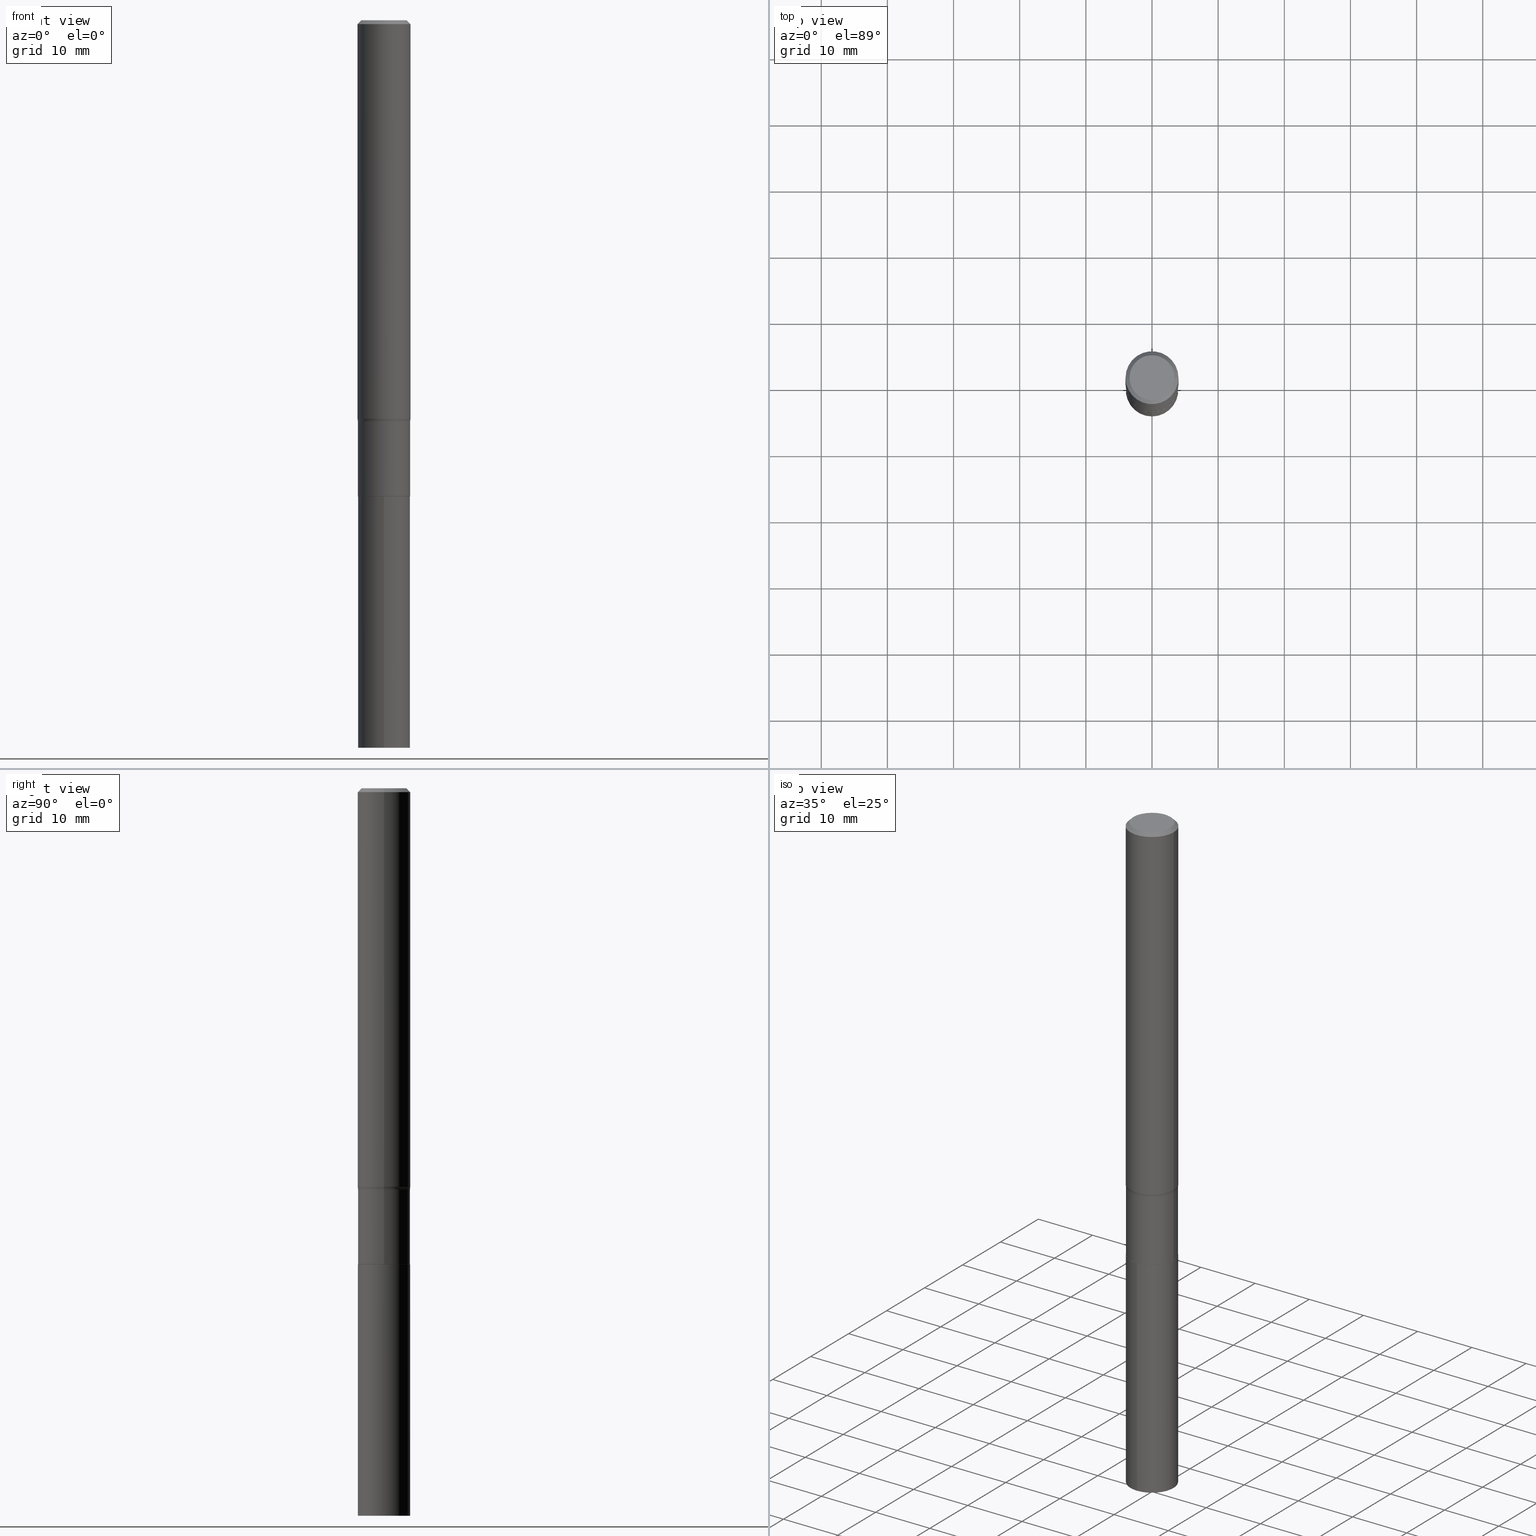
[diagram: canonical four-view strip — front | top / right | iso, engineering-drawing reading convention]
A machine part, canonical four-view strip (front | top / right | iso — engineering-drawing reading convention). The complete STEP part file that produces these views, byte-faithful:
ISO-10303-21;
HEADER;
FILE_DESCRIPTION (( 'STEP AP203' ),
    '1' );
FILE_NAME ('67867.STEP',
    '2024-04-19T16:49:51',
    ( '' ),
    ( '' ),
    'SwSTEP 2.0',
    'SolidWorks 2023',
    '' );
FILE_SCHEMA (( 'CONFIG_CONTROL_DESIGN' ));
ENDSEC;

DATA;
#1 = FACE_OUTER_BOUND ( 'NONE', #21, .T. ) ;
#2 = AXIS2_PLACEMENT_3D ( 'NONE', #353, #29, #392 ) ;
#3 = APPROVAL_STATUS ( 'not_yet_approved' ) ;
#4 = DIRECTION ( 'NONE',  ( 2.438088387897960049E-29, -3.491481338843145188E-15, -1.000000000000000000 ) ) ;
#5 = AXIS2_PLACEMENT_3D ( 'NONE', #311, #28, #170 ) ;
#6 = LINE ( 'NONE', #117, #183 ) ;
#7 = EDGE_CURVE ( 'NONE', #63, #448, #217, .T. ) ;
#8 = CARTESIAN_POINT ( 'NONE',  ( -0.1575000000000000289, 1.017330375105417295E-15, -0.02362500000000015976 ) ) ;
#9 = CARTESIAN_POINT ( 'NONE',  ( -0.1554999999999998883, -8.016950191754647736E-15, -2.391000000000000458 ) ) ;
#10 = AXIS2_PLACEMENT_3D ( 'NONE', #51, #224, #268 ) ;
#11 = CIRCLE ( 'NONE', #408, 0.1338749999999999940 ) ;
#12 = ORIENTED_EDGE ( 'NONE', *, *, #138, .F. ) ;
#13 = CARTESIAN_POINT ( 'NONE',  ( 6.932170424893008544E-29, -9.897302151218667552E-15, -2.834700000000000664 ) ) ;
#14 = CARTESIAN_POINT ( 'NONE',  ( 0.000000000000000000, 0.000000000000000000, 0.000000000000000000 ) ) ;
#15 = EDGE_CURVE ( 'NONE', #348, #135, #421, .T. ) ;
#16 = EDGE_LOOP ( 'NONE', ( #171, #89, #307, #199 ) ) ;
#17 = DIRECTION ( 'NONE',  ( 1.000000000000000000, 0.000000000000000000, 0.000000000000000000 ) ) ;
#18 = ORIENTED_EDGE ( 'NONE', *, *, #402, .T. ) ;
#19 = VECTOR ( 'NONE', #293, 39.37007874015748143 ) ;
#20 = CARTESIAN_POINT ( 'NONE',  ( -1.002970424325032604E-46, 1.431975951230895391E-32, 4.101342130344482109E-18 ) ) ;
#21 = EDGE_LOOP ( 'NONE', ( #133, #403, #155, #259 ) ) ;
#22 = EDGE_CURVE ( 'NONE', #424, #63, #201, .T. ) ;
#23 = CARTESIAN_POINT ( 'NONE',  ( 1.059052181758107427E-28, -1.512065839414336504E-14, -4.330700000000001104 ) ) ;
#24 = ORIENTED_EDGE ( 'NONE', *, *, #450, .F. ) ;
#25 =( NAMED_UNIT ( * ) SI_UNIT ( $, .STERADIAN. ) SOLID_ANGLE_UNIT ( ) );
#26 = VERTEX_POINT ( 'NONE', #94 ) ;
#27 = AXIS2_PLACEMENT_3D ( 'NONE', #215, #362, #464 ) ;
#28 = DIRECTION ( 'NONE',  ( -2.445468806185136597E-29, 3.491481338843145583E-15, 1.000000000000000000 ) ) ;
#29 = DIRECTION ( 'NONE',  ( -2.445468806185136597E-29, 3.491481338843145583E-15, 1.000000000000000000 ) ) ;
#30 = CARTESIAN_POINT ( 'NONE',  ( -0.1549999999999999989, -8.795960910790513652E-15, -2.834700000000000664 ) ) ;
#31 = PERSON_AND_ORGANIZATION_ROLE ( 'classification_officer' ) ;
#32 = DIRECTION ( 'NONE',  ( -2.445422053935872077E-29, 3.491548290725064953E-15, 1.000000000000000000 ) ) ;
#33 = CIRCLE ( 'NONE', #146, 0.1554999999999999993 ) ;
#34 = COORDINATED_UNIVERSAL_TIME_OFFSET ( 5, 0, .BEHIND. ) ;
#35 = CARTESIAN_POINT ( 'NONE',  ( 5.777420054612423732E-31, -8.248624663016986467E-17, -0.02362500000000015976 ) ) ;
#36 = ADVANCED_FACE ( 'NONE', ( #238 ), #380, .T. ) ;
#37 = FACE_OUTER_BOUND ( 'NONE', #400, .T. ) ;
#38 = CC_DESIGN_PERSON_AND_ORGANIZATION_ASSIGNMENT ( #358, #31, ( #190 ) ) ;
#39 = EDGE_CURVE ( 'NONE', #160, #162, #274, .T. ) ;
#40 = DIRECTION ( 'NONE',  ( -2.445422053935872077E-29, 3.491548290725064953E-15, 1.000000000000000000 ) ) ;
#41 = CIRCLE ( 'NONE', #58, 0.1549999999999999989 ) ;
#42 = CIRCLE ( 'NONE', #440, 0.08000000000000002942 ) ;
#43 = FACE_OUTER_BOUND ( 'NONE', #235, .T. ) ;
#44 = ADVANCED_FACE ( 'NONE', ( #101 ), #430, .F. ) ;
#45 = DIRECTION ( 'NONE',  ( 1.000000000000000000, -6.982962677686265922E-15, 4.876176775795935793E-29 ) ) ;
#46 = VERTEX_POINT ( 'NONE', #389 ) ;
#47 = CARTESIAN_POINT ( 'NONE',  ( 0.1554999999999999438, -1.085850696380214268E-15, 7.582454886362678420E-30 ) ) ;
#48 = VECTOR ( 'NONE', #278, 39.37007874015748854 ) ;
#49 = CIRCLE ( 'NONE', #295, 0.1575000000000000289 ) ;
#50 = EDGE_CURVE ( 'NONE', #332, #135, #327, .T. ) ;
#51 = CARTESIAN_POINT ( 'NONE',  ( 1.059052181758107427E-28, -1.512065839414336504E-14, -4.330700000000001104 ) ) ;
#52 = ORIENTED_EDGE ( 'NONE', *, *, #110, .T. ) ;
#53 = PRODUCT ( '67867', '67867', '', ( #158 ) ) ;
#54 = EDGE_LOOP ( 'NONE', ( #441, #264, #194, #299 ) ) ;
#55 = DIRECTION ( 'NONE',  ( 7.105427357601001859E-15, 1.000000000000000000, -3.491481338843145583E-15 ) ) ;
#56 = ORIENTED_EDGE ( 'NONE', *, *, #402, .F. ) ;
#57 = EDGE_CURVE ( 'NONE', #160, #462, #310, .T. ) ;
#58 = AXIS2_PLACEMENT_3D ( 'NONE', #250, #255, #75 ) ;
#59 = APPROVAL_PERSON_ORGANIZATION ( #214, #90, #423 ) ;
#60 = DIRECTION ( 'NONE',  ( 0.7071067811865454633, -7.319954787623248157E-15, -0.7071067811865495711 ) ) ;
#61 = ORIENTED_EDGE ( 'NONE', *, *, #180, .T. ) ;
#62 = CARTESIAN_POINT ( 'NONE',  ( -1.002970424325032604E-46, 1.431975951230895391E-32, 4.101342130344482109E-18 ) ) ;
#63 = VERTEX_POINT ( 'NONE', #390 ) ;
#64 = ORIENTED_EDGE ( 'NONE', *, *, #57, .T. ) ;
#65 = CC_DESIGN_APPROVAL ( #90, ( #190 ) ) ;
#66 = ADVANCED_FACE ( 'NONE', ( #326 ), #283, .T. ) ;
#67 = EDGE_LOOP ( 'NONE', ( #24, #269 ) ) ;
#68 = DIRECTION ( 'NONE',  ( -2.445468806185136597E-29, 3.491481338843145583E-15, 1.000000000000000000 ) ) ;
#69 = CYLINDRICAL_SURFACE ( 'NONE', #398, 0.1554999999999999438 ) ;
#70 = EDGE_CURVE ( 'NONE', #203, #368, #106, .T. ) ;
#71 = CC_DESIGN_APPROVAL ( #442, ( #131 ) ) ;
#72 = DIRECTION ( 'NONE',  ( -0.7071067811860403118, 7.493145998868519270E-15, 0.7071067811870545006 ) ) ;
#73 = CC_DESIGN_PERSON_AND_ORGANIZATION_ASSIGNMENT ( #239, #275, ( #53 ) ) ;
#74 = CC_DESIGN_PERSON_AND_ORGANIZATION_ASSIGNMENT ( #249, #288, ( #131 ) ) ;
#75 = DIRECTION ( 'NONE',  ( 1.000000000000000000, -6.982962677686263555E-15, 0.000000000000000000 ) ) ;
#76 = DIRECTION ( 'NONE',  ( 6.982962677686265922E-15, 1.000000000000000000, -3.491548290725064953E-15 ) ) ;
#77 = ADVANCED_FACE ( 'NONE', ( #178 ), #355, .T. ) ;
#78 = AXIS2_PLACEMENT_3D ( 'NONE', #418, #134, #231 ) ;
#79 = PLANE ( 'NONE',  #241 ) ;
#80 = DIRECTION ( 'NONE',  ( 2.445422053935871797E-29, -3.491548290725064953E-15, -1.000000000000000000 ) ) ;
#81 = EDGE_LOOP ( 'NONE', ( #335, #84 ) ) ;
#82 = DESIGN_CONTEXT ( 'detailed design', #204, 'design' ) ;
#83 = CARTESIAN_POINT ( 'NONE',  ( 6.932170424893008544E-29, -9.897302151218667552E-15, -2.834700000000000664 ) ) ;
#84 = ORIENTED_EDGE ( 'NONE', *, *, #127, .F. ) ;
#85 = CARTESIAN_POINT ( 'NONE',  ( -0.1575000000000000289, -3.065171290135835767E-15, -0.02362500000000015976 ) ) ;
#86 = AXIS2_PLACEMENT_3D ( 'NONE', #287, #68, #289 ) ;
#87 = LOCAL_TIME ( 12, 49, 51.00000000000000000, #280 ) ;
#88 = DIRECTION ( 'NONE',  ( -6.982962677686265133E-15, -1.000000000000000000, 3.513630860018345064E-15 ) ) ;
#89 = ORIENTED_EDGE ( 'NONE', *, *, #420, .T. ) ;
#90 = APPROVAL ( #286, 'UNSPECIFIED' ) ;
#91 = ORIENTED_EDGE ( 'NONE', *, *, #57, .F. ) ;
#92 = AXIS2_PLACEMENT_3D ( 'NONE', #23, #458, #132 ) ;
#93 = PRODUCT_DEFINITION_SHAPE ( 'NONE', 'NONE',  #459 ) ;
#94 = CARTESIAN_POINT ( 'NONE',  ( -0.1549999999999999989, -8.793311683616400085E-15, -2.834700000000000664 ) ) ;
#95 = APPLICATION_PROTOCOL_DEFINITION ( 'international standard', 'config_control_design', 1994, #204 ) ;
#96 = DIRECTION ( 'NONE',  ( -2.445422053935872077E-29, 3.491548290725064953E-15, 1.000000000000000000 ) ) ;
#97 = CALENDAR_DATE ( 2024, 19, 4 ) ;
#98 = ORIENTED_EDGE ( 'NONE', *, *, #186, .T. ) ;
#99 = VECTOR ( 'NONE', #369, 39.37007874015748143 ) ;
#100 = CALENDAR_DATE ( 2024, 19, 4 ) ;
#101 = FACE_OUTER_BOUND ( 'NONE', #301, .T. ) ;
#102 = ADVANCED_FACE ( 'NONE', ( #1 ), #179, .T. ) ;
#103 = DIRECTION ( 'NONE',  ( -6.982962677686265133E-15, -1.000000000000000000, 3.513630860018345064E-15 ) ) ;
#104 = LINE ( 'NONE', #432, #233 ) ;
#105 = APPROVAL ( #453, 'UNSPECIFIED' ) ;
#106 = CIRCLE ( 'NONE', #416, 0.1575000000000000289 ) ;
#107 = COORDINATED_UNIVERSAL_TIME_OFFSET ( 5, 0, .BEHIND. ) ;
#108 = DIRECTION ( 'NONE',  ( 1.000000000000000000, -6.982962677686257244E-15, 0.000000000000000000 ) ) ;
#109 = DIRECTION ( 'NONE',  ( 1.000000000000000000, -6.982962677686271444E-15, 0.000000000000000000 ) ) ;
#110 = EDGE_CURVE ( 'NONE', #448, #343, #104, .T. ) ;
#111 = CARTESIAN_POINT ( 'NONE',  ( 6.932170424893008544E-29, -9.897302151218667552E-15, -2.834700000000000664 ) ) ;
#112 = VECTOR ( 'NONE', #72, 39.37007874015748854 ) ;
#113 = AXIS2_PLACEMENT_3D ( 'NONE', #443, #187, #331 ) ;
#114 = DIRECTION ( 'NONE',  ( -2.445468806185136597E-29, 3.491481338843145583E-15, 1.000000000000000000 ) ) ;
#115 = ORIENTED_EDGE ( 'NONE', *, *, #138, .T. ) ;
#116 = APPLICATION_CONTEXT ( 'configuration controlled 3d designs of mechanical parts and assemblies' ) ;
#117 = CARTESIAN_POINT ( 'NONE',  ( 0.1575000000000001676, -1.099816621735588269E-15, 7.679978421878606441E-30 ) ) ;
#118 = ADVANCED_FACE ( 'NONE', ( #433 ), #69, .T. ) ;
#119 = EDGE_LOOP ( 'NONE', ( #223, #262, #386, #304 ) ) ;
#120 = DIRECTION ( 'NONE',  ( 1.000000000000000000, -6.982962677686261977E-15, 0.000000000000000000 ) ) ;
#121 = CC_DESIGN_PERSON_AND_ORGANIZATION_ASSIGNMENT ( #323, #172, ( #459 ) ) ;
#122 = ORIENTED_EDGE ( 'NONE', *, *, #50, .F. ) ;
#123 = TOROIDAL_SURFACE ( 'NONE', #27, 0.2354999999999999316, 0.08000000000000001554 ) ;
#124 = PLANE ( 'NONE',  #425 ) ;
#125 = DIRECTION ( 'NONE',  ( -2.445422053935872077E-29, 3.491548290725064953E-15, 1.000000000000000000 ) ) ;
#126 = ORIENTED_EDGE ( 'NONE', *, *, #388, .T. ) ;
#127 = EDGE_CURVE ( 'NONE', #26, #424, #41, .T. ) ;
#128 = ORIENTED_EDGE ( 'NONE', *, *, #329, .F. ) ;
#129 = APPLICATION_PROTOCOL_DEFINITION ( 'international standard', 'config_control_design', 1994, #116 ) ;
#130 = CARTESIAN_POINT ( 'NONE',  ( 0.1549999999999999989, -1.097966136626003921E-14, -2.834700000000000664 ) ) ;
#131 = PRODUCT_DEFINITION_FORMATION_WITH_SPECIFIED_SOURCE ( 'ANY', '', #53, .NOT_KNOWN. ) ;
#132 = DIRECTION ( 'NONE',  ( -6.982962677686265133E-15, -1.000000000000000000, 3.513630860018345064E-15 ) ) ;
#133 = ORIENTED_EDGE ( 'NONE', *, *, #357, .F. ) ;
#134 = DIRECTION ( 'NONE',  ( -2.445422053935871797E-29, 3.491548290725064953E-15, 1.000000000000000000 ) ) ;
#135 = VERTEX_POINT ( 'NONE', #468 ) ;
#136 = PERSON_AND_ORGANIZATION ( #243, #291 ) ;
#137 = DIRECTION ( 'NONE',  ( 2.445468806185136597E-29, -3.491481338843145583E-15, -1.000000000000000000 ) ) ;
#138 = EDGE_CURVE ( 'NONE', #343, #462, #465, .T. ) ;
#139 = APPROVAL_ROLE ( '' ) ;
#140 = CARTESIAN_POINT ( 'NONE',  ( 0.1575000000000002232, -9.385882573021411135E-15, -2.373223611165367508 ) ) ;
#141 = CC_DESIGN_DATE_AND_TIME_ASSIGNMENT ( #210, #394, ( #459 ) ) ;
#142 = DATE_TIME_ROLE ( 'classification_date' ) ;
#143 = DIRECTION ( 'NONE',  ( 1.000000000000000000, -6.982962677686268288E-15, 4.876176775795936353E-29 ) ) ;
#144 = ORIENTED_EDGE ( 'NONE', *, *, #22, .T. ) ;
#145 = LINE ( 'NONE', #284, #350 ) ;
#146 = AXIS2_PLACEMENT_3D ( 'NONE', #216, #401, #296 ) ;
#147 = CARTESIAN_POINT ( 'NONE',  ( 5.777420054612423732E-31, -8.248624663016986467E-17, -0.02362500000000015976 ) ) ;
#148 = EDGE_CURVE ( 'NONE', #26, #448, #208, .T. ) ;
#149 = LINE ( 'NONE', #47, #19 ) ;
#150 = CARTESIAN_POINT ( 'NONE',  ( -1.085850696380108364E-15, -0.1555000000000151261, -4.330700000000000216 ) ) ;
#151 = DIRECTION ( 'NONE',  ( -2.445468806185136597E-29, 3.491481338843145583E-15, 1.000000000000000000 ) ) ;
#152 = ORIENTED_EDGE ( 'NONE', *, *, #411, .F. ) ;
#153 = CC_DESIGN_DATE_AND_TIME_ASSIGNMENT ( #174, #142, ( #190 ) ) ;
#154 = DIRECTION ( 'NONE',  ( -2.445468806185136597E-29, 3.491481338843145583E-15, 1.000000000000000000 ) ) ;
#155 = ORIENTED_EDGE ( 'NONE', *, *, #305, .T. ) ;
#156 = UNCERTAINTY_MEASURE_WITH_UNIT (LENGTH_MEASURE( 1.000000000000000082E-05 ), #202, 'distance_accuracy_value', 'NONE');
#157 = CARTESIAN_POINT ( 'NONE',  ( 6.932170424893007423E-29, -9.897302151218665974E-15, -2.834700000000000220 ) ) ;
#158 = MECHANICAL_CONTEXT ( 'NONE', #116, 'mechanical' ) ;
#159 = AXIS2_PLACEMENT_3D ( 'NONE', #13, #154, #298 ) ;
#160 = VERTEX_POINT ( 'NONE', #140 ) ;
#161 = ADVANCED_FACE ( 'NONE', ( #213 ), #361, .T. ) ;
#162 = VERTEX_POINT ( 'NONE', #318 ) ;
#163 = DIMENSIONAL_EXPONENTS ( 1.000000000000000000, 0.000000000000000000, 0.000000000000000000, 0.000000000000000000, 0.000000000000000000, 0.000000000000000000, 0.000000000000000000 ) ;
#164 = ORIENTED_EDGE ( 'NONE', *, *, #435, .F. ) ;
#165 = ADVANCED_FACE ( 'NONE', ( #37 ), #123, .F. ) ;
#166 = DIRECTION ( 'NONE',  ( -2.445468806185136597E-29, 3.491481338843145583E-15, 1.000000000000000000 ) ) ;
#167 = ORIENTED_EDGE ( 'NONE', *, *, #329, .T. ) ;
#168 = AXIS2_PLACEMENT_3D ( 'NONE', #173, #40, #181 ) ;
#169 = AXIS2_PLACEMENT_3D ( 'NONE', #193, #397, #219 ) ;
#170 = DIRECTION ( 'NONE',  ( 1.000000000000000000, -6.982962677686271444E-15, 0.000000000000000000 ) ) ;
#171 = ORIENTED_EDGE ( 'NONE', *, *, #428, .F. ) ;
#172 = PERSON_AND_ORGANIZATION_ROLE ( 'creator' ) ;
#173 = CARTESIAN_POINT ( 'NONE',  ( 6.932170424893007423E-29, -9.897302151218665974E-15, -2.834700000000000220 ) ) ;
#174 = DATE_AND_TIME ( #100, #466 ) ;
#175 = CARTESIAN_POINT ( 'NONE',  ( -5.014852121625163022E-47, 7.159879756154476955E-33, 2.050671065172241055E-18 ) ) ;
#176 = CIRCLE ( 'NONE', #277, 0.1338749999999999940 ) ;
#177 = DATE_AND_TIME ( #97, #384 ) ;
#178 = FACE_OUTER_BOUND ( 'NONE', #446, .T. ) ;
#179 = CYLINDRICAL_SURFACE ( 'NONE', #383, 0.1575000000000001676 ) ;
#180 = EDGE_CURVE ( 'NONE', #281, #332, #145, .T. ) ;
#181 = DIRECTION ( 'NONE',  ( -6.982962677686265133E-15, -1.000000000000000000, 3.513630860018345064E-15 ) ) ;
#182 = CIRCLE ( 'NONE', #10, 0.1554999999999999993 ) ;
#183 = VECTOR ( 'NONE', #263, 39.37007874015748143 ) ;
#184 = FACE_OUTER_BOUND ( 'NONE', #81, .T. ) ;
#185 = FACE_OUTER_BOUND ( 'NONE', #119, .T. ) ;
#186 = EDGE_CURVE ( 'NONE', #281, #348, #182, .T. ) ;
#187 = DIRECTION ( 'NONE',  ( 2.445468806185136597E-29, -3.491481338843145583E-15, -1.000000000000000000 ) ) ;
#188 = PRODUCT_RELATED_PRODUCT_CATEGORY ( 'detail', '', ( #53 ) ) ;
#189 = AXIS2_PLACEMENT_3D ( 'NONE', #240, #382, #205 ) ;
#190 = SECURITY_CLASSIFICATION ( '', '', #385 ) ;
#191 = DIRECTION ( 'NONE',  ( -2.445468806185136597E-29, 3.491481338843145583E-15, 1.000000000000000000 ) ) ;
#192 = VERTEX_POINT ( 'NONE', #439 ) ;
#193 = CARTESIAN_POINT ( 'NONE',  ( 5.847115915588662338E-29, -8.348131881173961387E-15, -2.391000000000000458 ) ) ;
#194 = ORIENTED_EDGE ( 'NONE', *, *, #244, .T. ) ;
#195 = DIRECTION ( 'NONE',  ( 0.000000000000000000, 0.000000000000000000, 1.000000000000000000 ) ) ;
#196 = ADVANCED_FACE ( 'NONE', ( #363 ), #79, .F. ) ;
#197 = CLOSED_SHELL ( 'NONE', ( #36, #438, #161, #196 ) ) ;
#198 = CC_DESIGN_APPROVAL ( #105, ( #459 ) ) ;
#199 = ORIENTED_EDGE ( 'NONE', *, *, #244, .F. ) ;
#200 =( LENGTH_UNIT ( ) NAMED_UNIT ( * ) SI_UNIT ( $, .METRE. ) );
#201 = LINE ( 'NONE', #130, #48 ) ;
#202 =( CONVERSION_BASED_UNIT ( 'INCH', #315 ) LENGTH_UNIT ( ) NAMED_UNIT ( #163 ) );
#203 = VERTEX_POINT ( 'NONE', #437 ) ;
#204 = APPLICATION_CONTEXT ( 'configuration controlled 3d designs of mechanical parts and assemblies' ) ;
#205 = DIRECTION ( 'NONE',  ( -6.982962677686265133E-15, -1.000000000000000000, 3.513630860018345064E-15 ) ) ;
#206 = CIRCLE ( 'NONE', #159, 0.1549999999999999989 ) ;
#207 = DATE_AND_TIME ( #245, #457 ) ;
#208 = LINE ( 'NONE', #30, #112 ) ;
#209 = CARTESIAN_POINT ( 'NONE',  ( 6.932170424893007423E-29, -9.897302151218665974E-15, -2.834700000000000220 ) ) ;
#210 = DATE_AND_TIME ( #317, #87 ) ;
#211 = DIRECTION ( 'NONE',  ( -2.445468806185136597E-29, 3.491481338843145583E-15, 1.000000000000000000 ) ) ;
#212 = AXIS2_PLACEMENT_3D ( 'NONE', #461, #195, #17 ) ;
#213 = FACE_OUTER_BOUND ( 'NONE', #225, .T. ) ;
#214 = PERSON_AND_ORGANIZATION ( #243, #291 ) ;
#215 = CARTESIAN_POINT ( 'NONE',  ( 5.847115915588662338E-29, -8.348131881173961387E-15, -2.391000000000000458 ) ) ;
#216 = CARTESIAN_POINT ( 'NONE',  ( 6.930947690489914621E-29, -9.895556410549243682E-15, -2.834200000000000053 ) ) ;
#217 = CIRCLE ( 'NONE', #266, 0.1554999999999999993 ) ;
#218 = CONICAL_SURFACE ( 'NONE', #113, 0.1575000000000000289, 0.7853981633974453924 ) ;
#219 = DIRECTION ( 'NONE',  ( 1.000000000000000000, -6.982962677686264344E-15, 4.883557194083112340E-29 ) ) ;
#220 = ADVANCED_FACE ( 'NONE', ( #336 ), #321, .T. ) ;
#221 = ORIENTED_EDGE ( 'NONE', *, *, #256, .T. ) ;
#222 = DIRECTION ( 'NONE',  ( 1.000000000000000000, -6.982962677686267499E-15, 0.000000000000000000 ) ) ;
#223 = ORIENTED_EDGE ( 'NONE', *, *, #349, .T. ) ;
#224 = DIRECTION ( 'NONE',  ( -2.445422053935872077E-29, 3.491548290725064953E-15, 1.000000000000000000 ) ) ;
#225 = EDGE_LOOP ( 'NONE', ( #227, #98, #313, #122 ) ) ;
#226 = FACE_OUTER_BOUND ( 'NONE', #454, .T. ) ;
#227 = ORIENTED_EDGE ( 'NONE', *, *, #180, .F. ) ;
#228 = EDGE_CURVE ( 'NONE', #162, #160, #364, .T. ) ;
#229 = FACE_OUTER_BOUND ( 'NONE', #67, .T. ) ;
#230 = ORIENTED_EDGE ( 'NONE', *, *, #450, .T. ) ;
#231 = DIRECTION ( 'NONE',  ( -6.982962677686265922E-15, -1.000000000000000000, 3.491548290725064953E-15 ) ) ;
#232 = EDGE_LOOP ( 'NONE', ( #297, #410 ) ) ;
#233 = VECTOR ( 'NONE', #248, 39.37007874015748143 ) ;
#234 = VECTOR ( 'NONE', #60, 39.37007874015748143 ) ;
#235 = EDGE_LOOP ( 'NONE', ( #152, #460, #64, #18 ) ) ;
#236 = ADVANCED_FACE ( 'NONE', ( #43 ), #451, .F. ) ;
#237 = DIRECTION ( 'NONE',  ( 1.000000000000000000, -6.982962677686266711E-15, 4.876170806578254279E-29 ) ) ;
#238 = FACE_OUTER_BOUND ( 'NONE', #346, .T. ) ;
#239 = PERSON_AND_ORGANIZATION ( #243, #291 ) ;
#240 = CARTESIAN_POINT ( 'NONE',  ( 6.932170424893007423E-29, -9.897302151218665974E-15, -2.834700000000000220 ) ) ;
#241 = AXIS2_PLACEMENT_3D ( 'NONE', #157, #80, #76 ) ;
#242 = EDGE_LOOP ( 'NONE', ( #415, #406, #144, #444 ) ) ;
#243 = PERSON ( 'UNSPECIFIED', 'UNSPECIFIED', 'UNSPECIFIED', ('UNSPECIFIED'), ('UNSPECIFIED'), ('UNSPECIFIED') ) ;
#244 = EDGE_CURVE ( 'NONE', #46, #368, #300, .T. ) ;
#245 = CALENDAR_DATE ( 2024, 19, 4 ) ;
#246 = DIRECTION ( 'NONE',  ( -1.000000000000000000, 6.982962677686265922E-15, -4.876176775795935793E-29 ) ) ;
#247 = PERSON_AND_ORGANIZATION ( #243, #291 ) ;
#248 = DIRECTION ( 'NONE',  ( -2.445468806185136877E-29, 3.491481338843145188E-15, 1.000000000000000000 ) ) ;
#249 = PERSON_AND_ORGANIZATION ( #243, #291 ) ;
#250 = CARTESIAN_POINT ( 'NONE',  ( 6.932170424893008544E-29, -9.897302151218667552E-15, -2.834700000000000664 ) ) ;
#251 = ADVANCED_FACE ( 'NONE', ( #184 ), #124, .F. ) ;
#252 = AXIS2_PLACEMENT_3D ( 'NONE', #209, #32, #103 ) ;
#253 = AXIS2_PLACEMENT_3D ( 'NONE', #111, #114, #294 ) ;
#254 = CALENDAR_DATE ( 2024, 19, 4 ) ;
#255 = DIRECTION ( 'NONE',  ( -2.445468806185136597E-29, 3.491481338843145583E-15, 1.000000000000000000 ) ) ;
#256 = EDGE_CURVE ( 'NONE', #448, #63, #33, .T. ) ;
#257 = DIRECTION ( 'NONE',  ( -1.000000000000000000, 6.982962677686267499E-15, 0.000000000000000000 ) ) ;
#258 = CARTESIAN_POINT ( 'NONE',  ( 5.803644311206949741E-29, -8.286065951285822866E-15, -2.373223611165367508 ) ) ;
#259 = ORIENTED_EDGE ( 'NONE', *, *, #276, .F. ) ;
#260 = AXIS2_PLACEMENT_3D ( 'NONE', #175, #4, #246 ) ;
#261 = DIRECTION ( 'NONE',  ( -2.438088387897960049E-29, 3.491481338843145188E-15, 1.000000000000000000 ) ) ;
#262 = ORIENTED_EDGE ( 'NONE', *, *, #148, .T. ) ;
#263 = DIRECTION ( 'NONE',  ( -2.445468806185136877E-29, 3.491481338843145188E-15, 1.000000000000000000 ) ) ;
#264 = ORIENTED_EDGE ( 'NONE', *, *, #388, .F. ) ;
#265 = CARTESIAN_POINT ( 'NONE',  ( -0.1575000000000001676, 1.119104808822158984E-15, -7.747322767151485392E-30 ) ) ;
#266 = AXIS2_PLACEMENT_3D ( 'NONE', #279, #455, #378 ) ;
#267 = CC_DESIGN_SECURITY_CLASSIFICATION ( #190, ( #131 ) ) ;
#268 = DIRECTION ( 'NONE',  ( -6.982962677686265133E-15, -1.000000000000000000, 3.513630860018345064E-15 ) ) ;
#269 = ORIENTED_EDGE ( 'NONE', *, *, #186, .F. ) ;
#270 = DIRECTION ( 'NONE',  ( -1.000000000000000000, 7.105427357600995548E-15, 0.000000000000000000 ) ) ;
#271 = ORIENTED_EDGE ( 'NONE', *, *, #228, .F. ) ;
#272 = LINE ( 'NONE', #308, #234 ) ;
#273 = ORIENTED_EDGE ( 'NONE', *, *, #357, .T. ) ;
#274 = CIRCLE ( 'NONE', #2, 0.1575000000000002787 ) ;
#275 = PERSON_AND_ORGANIZATION_ROLE ( 'design_owner' ) ;
#276 = EDGE_CURVE ( 'NONE', #368, #203, #49, .T. ) ;
#277 = AXIS2_PLACEMENT_3D ( 'NONE', #62, #166, #237 ) ;
#278 = DIRECTION ( 'NONE',  ( 0.7071067811860403118, -2.468850131076945266E-15, 0.7071067811870545006 ) ) ;
#279 = CARTESIAN_POINT ( 'NONE',  ( 6.930947690489914621E-29, -9.895556410549243682E-15, -2.834200000000000053 ) ) ;
#280 = COORDINATED_UNIVERSAL_TIME_OFFSET ( 5, 0, .BEHIND. ) ;
#281 = VERTEX_POINT ( 'NONE', #367 ) ;
#282 = ADVANCED_FACE ( 'NONE', ( #404 ), #218, .T. ) ;
#283 = CONICAL_SURFACE ( 'NONE', #449, 0.1575000000000000289, 0.7853981633974453924 ) ;
#284 = CARTESIAN_POINT ( 'NONE',  ( 1.104893954107024810E-15, 0.1554999999999900906, -2.834700000000000664 ) ) ;
#285 = CONICAL_SURFACE ( 'NONE', #365, 0.1549999999999999989, 0.7853981633967311859 ) ;
#286 = APPROVAL_STATUS ( 'not_yet_approved' ) ;
#287 = CARTESIAN_POINT ( 'NONE',  ( 0.000000000000000000, 0.000000000000000000, 0.000000000000000000 ) ) ;
#288 = PERSON_AND_ORGANIZATION_ROLE ( 'creator' ) ;
#289 = DIRECTION ( 'NONE',  ( 1.000000000000000000, -6.982962677686268288E-15, 4.876176775795936353E-29 ) ) ;
#290 = CARTESIAN_POINT ( 'NONE',  ( 0.2354999999999999316, -9.992619591769077703E-15, -2.391000000000000458 ) ) ;
#291 = ORGANIZATION ( 'UNSPECIFIED', 'UNSPECIFIED', '' ) ;
#292 = DIRECTION ( 'NONE',  ( -2.445468806185136597E-29, 3.491481338843145583E-15, 1.000000000000000000 ) ) ;
#293 = DIRECTION ( 'NONE',  ( -2.445468806185136877E-29, 3.491481338843145188E-15, 1.000000000000000000 ) ) ;
#294 = DIRECTION ( 'NONE',  ( 1.000000000000000000, -6.982962677686263555E-15, 0.000000000000000000 ) ) ;
#295 = AXIS2_PLACEMENT_3D ( 'NONE', #328, #191, #222 ) ;
#296 = DIRECTION ( 'NONE',  ( 1.000000000000000000, -6.982962677686261977E-15, 0.000000000000000000 ) ) ;
#297 = ORIENTED_EDGE ( 'NONE', *, *, #435, .T. ) ;
#298 = DIRECTION ( 'NONE',  ( 1.000000000000000000, -6.982962677686263555E-15, 0.000000000000000000 ) ) ;
#299 = ORIENTED_EDGE ( 'NONE', *, *, #276, .T. ) ;
#300 = LINE ( 'NONE', #8, #99 ) ;
#301 = EDGE_LOOP ( 'NONE', ( #126, #316 ) ) ;
#302 = CIRCLE ( 'NONE', #434, 0.1554999999999999993 ) ;
#303 = DIRECTION ( 'NONE',  ( 1.000000000000000000, -6.982962677686267499E-15, 4.876176775795935232E-29 ) ) ;
#304 = ORIENTED_EDGE ( 'NONE', *, *, #22, .F. ) ;
#305 = EDGE_CURVE ( 'NONE', #160, #203, #6, .T. ) ;
#306 = PERSON_AND_ORGANIZATION ( #243, #291 ) ;
#307 = ORIENTED_EDGE ( 'NONE', *, *, #70, .T. ) ;
#308 = CARTESIAN_POINT ( 'NONE',  ( 0.1575000000000000289, -1.163014681279186162E-15, -0.02362500000000015976 ) ) ;
#309 = CARTESIAN_POINT ( 'NONE',  ( -1.085850696380145046E-15, -0.1555000000000098803, -2.834699999999999775 ) ) ;
#310 = CIRCLE ( 'NONE', #407, 0.08000000000000002942 ) ;
#311 = CARTESIAN_POINT ( 'NONE',  ( 5.847115915588662338E-29, -8.348131881173961387E-15, -2.391000000000000458 ) ) ;
#312 = VECTOR ( 'NONE', #405, 39.37007874015748143 ) ;
#313 = ORIENTED_EDGE ( 'NONE', *, *, #15, .T. ) ;
#314 = ADVANCED_BREP_SHAPE_REPRESENTATION ( '67867', ( #338, #339, #212 ), #333 ) ;
#315 = LENGTH_MEASURE_WITH_UNIT ( LENGTH_MEASURE( 0.02539999999999999897 ), #200 );
#316 = ORIENTED_EDGE ( 'NONE', *, *, #428, .T. ) ;
#317 = CALENDAR_DATE ( 2024, 19, 4 ) ;
#318 = CARTESIAN_POINT ( 'NONE',  ( -0.1575000000000002232, -7.166961142463663685E-15, -2.373223611165367508 ) ) ;
#319 = AXIS2_PLACEMENT_3D ( 'NONE', #324, #211, #109 ) ;
#320 = DIRECTION ( 'NONE',  ( -2.445468806185136597E-29, 3.491481338843145583E-15, 1.000000000000000000 ) ) ;
#321 = CONICAL_SURFACE ( 'NONE', #253, 0.1549999999999999989, 0.7853981633967311859 ) ;
#322 = DIRECTION ( 'NONE',  ( -2.445468806185136597E-29, 3.491481338843145583E-15, 1.000000000000000000 ) ) ;
#323 = PERSON_AND_ORGANIZATION ( #243, #291 ) ;
#324 = CARTESIAN_POINT ( 'NONE',  ( 5.847115915588662338E-29, -8.348131881173961387E-15, -2.391000000000000458 ) ) ;
#325 = PERSON_AND_ORGANIZATION_ROLE ( 'design_supplier' ) ;
#326 = FACE_OUTER_BOUND ( 'NONE', #16, .T. ) ;
#327 = CIRCLE ( 'NONE', #252, 0.1554999999999999993 ) ;
#328 = CARTESIAN_POINT ( 'NONE',  ( 5.777420054612423732E-31, -8.248624663016986467E-17, -0.02362500000000015976 ) ) ;
#329 = EDGE_CURVE ( 'NONE', #63, #462, #149, .T. ) ;
#330 = DIRECTION ( 'NONE',  ( -2.445468806185136597E-29, 3.491481338843145583E-15, 1.000000000000000000 ) ) ;
#331 = DIRECTION ( 'NONE',  ( -1.000000000000000000, 6.982962677686267499E-15, 0.000000000000000000 ) ) ;
#332 = VERTEX_POINT ( 'NONE', #366 ) ;
#333 =( GEOMETRIC_REPRESENTATION_CONTEXT ( 3 ) GLOBAL_UNCERTAINTY_ASSIGNED_CONTEXT ( ( #156 ) ) GLOBAL_UNIT_ASSIGNED_CONTEXT ( ( #202, #409, #25 ) ) REPRESENTATION_CONTEXT ( 'NONE', 'WORKASPACE' ) );
#334 = DIRECTION ( 'NONE',  ( 1.000000000000000000, -6.982962677686263555E-15, 0.000000000000000000 ) ) ;
#335 = ORIENTED_EDGE ( 'NONE', *, *, #349, .F. ) ;
#336 = FACE_OUTER_BOUND ( 'NONE', #242, .T. ) ;
#337 = ORIENTED_EDGE ( 'NONE', *, *, #70, .F. ) ;
#338 = MANIFOLD_SOLID_BREP ( 'Body-Move/Copy2[1]', #197 ) ;
#339 = MANIFOLD_SOLID_BREP ( 'Body-Move/Copy2[2]', #456 ) ;
#340 = CARTESIAN_POINT ( 'NONE',  ( 0.1554999999999998883, -9.433982577554176050E-15, -2.391000000000000458 ) ) ;
#341 = EDGE_LOOP ( 'NONE', ( #370, #221, #167, #12 ) ) ;
#342 = CIRCLE ( 'NONE', #92, 0.1554999999999999993 ) ;
#343 = VERTEX_POINT ( 'NONE', #9 ) ;
#344 = ADVANCED_FACE ( 'NONE', ( #185 ), #285, .T. ) ;
#345 = APPROVAL_ROLE ( '' ) ;
#346 = EDGE_LOOP ( 'NONE', ( #230, #61, #164, #374 ) ) ;
#347 = PLANE ( 'NONE',  #78 ) ;
#348 = VERTEX_POINT ( 'NONE', #150 ) ;
#349 = EDGE_CURVE ( 'NONE', #424, #26, #206, .T. ) ;
#350 = VECTOR ( 'NONE', #427, 39.37007874015748143 ) ;
#351 = CARTESIAN_POINT ( 'NONE',  ( -0.1554999999999999993, -8.016950191754646159E-15, -2.834200000000000053 ) ) ;
#352 = AXIS2_PLACEMENT_3D ( 'NONE', #14, #377, #303 ) ;
#353 = CARTESIAN_POINT ( 'NONE',  ( 5.803644311206949741E-29, -8.286065951285822866E-15, -2.373223611165367508 ) ) ;
#354 = COORDINATED_UNIVERSAL_TIME_OFFSET ( 5, 0, .BEHIND. ) ;
#355 = CYLINDRICAL_SURFACE ( 'NONE', #86, 0.1554999999999999438 ) ;
#356 = CARTESIAN_POINT ( 'NONE',  ( 0.000000000000000000, 0.000000000000000000, 0.000000000000000000 ) ) ;
#357 = EDGE_CURVE ( 'NONE', #162, #368, #445, .T. ) ;
#358 = PERSON_AND_ORGANIZATION ( #243, #291 ) ;
#359 = DIRECTION ( 'NONE',  ( -6.982962677686266711E-15, -1.000000000000000000, 3.491481338843145583E-15 ) ) ;
#360 = LOCAL_TIME ( 12, 49, 51.00000000000000000, #107 ) ;
#361 = CYLINDRICAL_SURFACE ( 'NONE', #168, 0.1554999999999999993 ) ;
#362 = DIRECTION ( 'NONE',  ( -2.445468806185136597E-29, 3.491481338843145583E-15, 1.000000000000000000 ) ) ;
#363 = FACE_OUTER_BOUND ( 'NONE', #232, .T. ) ;
#364 = CIRCLE ( 'NONE', #371, 0.1575000000000002787 ) ;
#365 = AXIS2_PLACEMENT_3D ( 'NONE', #83, #330, #334 ) ;
#366 = CARTESIAN_POINT ( 'NONE',  ( 1.104893954107061689E-15, 0.1554999999999900906, -2.834700000000000664 ) ) ;
#367 = CARTESIAN_POINT ( 'NONE',  ( 1.104893954107042953E-15, 0.1554999999999848725, -4.330700000000001104 ) ) ;
#368 = VERTEX_POINT ( 'NONE', #85 ) ;
#369 = DIRECTION ( 'NONE',  ( -0.7071067811865454633, 2.468850131082235367E-15, -0.7071067811865495711 ) ) ;
#370 = ORIENTED_EDGE ( 'NONE', *, *, #110, .F. ) ;
#371 = AXIS2_PLACEMENT_3D ( 'NONE', #258, #151, #120 ) ;
#372 = ADVANCED_FACE ( 'NONE', ( #226 ), #373, .T. ) ;
#373 = CYLINDRICAL_SURFACE ( 'NONE', #352, 0.1575000000000001676 ) ;
#374 = ORIENTED_EDGE ( 'NONE', *, *, #15, .F. ) ;
#375 = CARTESIAN_POINT ( 'NONE',  ( -0.2354999999999999316, -6.674803738458926724E-15, -2.391000000000000458 ) ) ;
#376 = ORIENTED_EDGE ( 'NONE', *, *, #305, .F. ) ;
#377 = DIRECTION ( 'NONE',  ( -2.445468806185136597E-29, 3.491481338843145583E-15, 1.000000000000000000 ) ) ;
#378 = DIRECTION ( 'NONE',  ( 1.000000000000000000, -6.982962677686261977E-15, 0.000000000000000000 ) ) ;
#379 = DIRECTION ( 'NONE',  ( -2.445468806185136597E-29, 3.491481338843145583E-15, 1.000000000000000000 ) ) ;
#380 = CYLINDRICAL_SURFACE ( 'NONE', #189, 0.1554999999999999993 ) ;
#381 = CARTESIAN_POINT ( 'NONE',  ( 6.932170424893007423E-29, -9.897302151218665974E-15, -2.834700000000000220 ) ) ;
#382 = DIRECTION ( 'NONE',  ( -2.445422053935872077E-29, 3.491548290725064953E-15, 1.000000000000000000 ) ) ;
#383 = AXIS2_PLACEMENT_3D ( 'NONE', #395, #322, #436 ) ;
#384 = LOCAL_TIME ( 12, 49, 51.00000000000000000, #467 ) ;
#385 = SECURITY_CLASSIFICATION_LEVEL ( 'unclassified' ) ;
#386 = ORIENTED_EDGE ( 'NONE', *, *, #7, .F. ) ;
#387 = APPROVAL_DATE_TIME ( #207, #90 ) ;
#388 = EDGE_CURVE ( 'NONE', #46, #192, #11, .T. ) ;
#389 = CARTESIAN_POINT ( 'NONE',  ( -0.1338749999999999940, 9.760872517903331886E-16, 4.101342130337800673E-18 ) ) ;
#390 = CARTESIAN_POINT ( 'NONE',  ( 0.1554999999999999993, -1.098140710692945677E-14, -2.834200000000000053 ) ) ;
#391 = VECTOR ( 'NONE', #96, 39.37007874015748143 ) ;
#392 = DIRECTION ( 'NONE',  ( 1.000000000000000000, -6.982962677686261977E-15, 0.000000000000000000 ) ) ;
#393 = APPROVAL_PERSON_ORGANIZATION ( #247, #442, #139 ) ;
#394 = DATE_TIME_ROLE ( 'creation_date' ) ;
#395 = CARTESIAN_POINT ( 'NONE',  ( 0.000000000000000000, 0.000000000000000000, 0.000000000000000000 ) ) ;
#396 = DIRECTION ( 'NONE',  ( 1.000000000000000000, -6.982962677686267499E-15, 0.000000000000000000 ) ) ;
#397 = DIRECTION ( 'NONE',  ( -2.445468806185136597E-29, 3.491481338843145583E-15, 1.000000000000000000 ) ) ;
#398 = AXIS2_PLACEMENT_3D ( 'NONE', #356, #320, #143 ) ;
#399 = APPROVAL_PERSON_ORGANIZATION ( #306, #105, #345 ) ;
#400 = EDGE_LOOP ( 'NONE', ( #271, #413, #115, #91 ) ) ;
#401 = DIRECTION ( 'NONE',  ( -2.445468806185136597E-29, 3.491481338843145583E-15, 1.000000000000000000 ) ) ;
#402 = EDGE_CURVE ( 'NONE', #462, #343, #417, .T. ) ;
#403 = ORIENTED_EDGE ( 'NONE', *, *, #228, .T. ) ;
#404 = FACE_OUTER_BOUND ( 'NONE', #54, .T. ) ;
#405 = DIRECTION ( 'NONE',  ( -2.445468806185136877E-29, 3.491481338843145188E-15, 1.000000000000000000 ) ) ;
#406 = ORIENTED_EDGE ( 'NONE', *, *, #127, .T. ) ;
#407 = AXIS2_PLACEMENT_3D ( 'NONE', #290, #359, #108 ) ;
#408 = AXIS2_PLACEMENT_3D ( 'NONE', #20, #379, #414 ) ;
#409 =( NAMED_UNIT ( * ) PLANE_ANGLE_UNIT ( ) SI_UNIT ( $, .RADIAN. ) );
#410 = ORIENTED_EDGE ( 'NONE', *, *, #50, .T. ) ;
#411 = EDGE_CURVE ( 'NONE', #162, #343, #42, .T. ) ;
#412 = CARTESIAN_POINT ( 'NONE',  ( 0.1549999999999999989, -1.097966136626003921E-14, -2.834700000000000664 ) ) ;
#413 = ORIENTED_EDGE ( 'NONE', *, *, #411, .T. ) ;
#414 = DIRECTION ( 'NONE',  ( 1.000000000000000000, -6.982962677686266711E-15, 4.876170806578254279E-29 ) ) ;
#415 = ORIENTED_EDGE ( 'NONE', *, *, #148, .F. ) ;
#416 = AXIS2_PLACEMENT_3D ( 'NONE', #147, #292, #396 ) ;
#417 = CIRCLE ( 'NONE', #5, 0.1554999999999998883 ) ;
#418 = CARTESIAN_POINT ( 'NONE',  ( -3.502024748132347409E-31, -3.033703939960946625E-14, -4.330700000000001104 ) ) ;
#419 = ORIENTED_EDGE ( 'NONE', *, *, #39, .T. ) ;
#420 = EDGE_CURVE ( 'NONE', #192, #203, #272, .T. ) ;
#421 = LINE ( 'NONE', #309, #391 ) ;
#422 = CC_DESIGN_PERSON_AND_ORGANIZATION_ASSIGNMENT ( #136, #325, ( #131 ) ) ;
#423 = APPROVAL_ROLE ( '' ) ;
#424 = VERTEX_POINT ( 'NONE', #412 ) ;
#425 = AXIS2_PLACEMENT_3D ( 'NONE', #447, #261, #45 ) ;
#426 = APPROVAL_DATE_TIME ( #177, #442 ) ;
#427 = DIRECTION ( 'NONE',  ( -2.445422053935872077E-29, 3.491548290725064953E-15, 1.000000000000000000 ) ) ;
#428 = EDGE_CURVE ( 'NONE', #192, #46, #176, .T. ) ;
#429 = APPROVAL_DATE_TIME ( #463, #105 ) ;
#430 = PLANE ( 'NONE',  #260 ) ;
#431 = SHAPE_DEFINITION_REPRESENTATION ( #93, #314 ) ;
#432 = CARTESIAN_POINT ( 'NONE',  ( -0.1554999999999999438, 1.104893954106955390E-15, -7.648944065346376022E-30 ) ) ;
#433 = FACE_OUTER_BOUND ( 'NONE', #341, .T. ) ;
#434 = AXIS2_PLACEMENT_3D ( 'NONE', #381, #125, #88 ) ;
#435 = EDGE_CURVE ( 'NONE', #135, #332, #302, .T. ) ;
#436 = DIRECTION ( 'NONE',  ( 1.000000000000000000, -6.982962677686267499E-15, 4.876176775795935232E-29 ) ) ;
#437 = CARTESIAN_POINT ( 'NONE',  ( 0.1575000000000000289, -1.182302868365756877E-15, -0.02362500000000015976 ) ) ;
#438 = ADVANCED_FACE ( 'NONE', ( #229 ), #347, .F. ) ;
#439 = CARTESIAN_POINT ( 'NONE',  ( 0.1338749999999999940, -1.040731925365424925E-15, 4.101342130351390035E-18 ) ) ;
#440 = AXIS2_PLACEMENT_3D ( 'NONE', #375, #55, #270 ) ;
#441 = ORIENTED_EDGE ( 'NONE', *, *, #420, .F. ) ;
#442 = APPROVAL ( #3, 'UNSPECIFIED' ) ;
#443 = CARTESIAN_POINT ( 'NONE',  ( 5.777420054612423732E-31, -8.248624663016986467E-17, -0.02362500000000015976 ) ) ;
#444 = ORIENTED_EDGE ( 'NONE', *, *, #256, .F. ) ;
#445 = LINE ( 'NONE', #265, #312 ) ;
#446 = EDGE_LOOP ( 'NONE', ( #452, #52, #56, #128 ) ) ;
#447 = CARTESIAN_POINT ( 'NONE',  ( -4.535861368650519491E-31, -1.988952087075426190E-14, -2.834700000000000220 ) ) ;
#448 = VERTEX_POINT ( 'NONE', #351 ) ;
#449 = AXIS2_PLACEMENT_3D ( 'NONE', #35, #137, #257 ) ;
#450 = EDGE_CURVE ( 'NONE', #348, #281, #342, .T. ) ;
#451 = TOROIDAL_SURFACE ( 'NONE', #169, 0.2354999999999999316, 0.08000000000000001554 ) ;
#452 = ORIENTED_EDGE ( 'NONE', *, *, #7, .T. ) ;
#453 = APPROVAL_STATUS ( 'not_yet_approved' ) ;
#454 = EDGE_LOOP ( 'NONE', ( #419, #273, #337, #376 ) ) ;
#455 = DIRECTION ( 'NONE',  ( -2.445468806185136597E-29, 3.491481338843145583E-15, 1.000000000000000000 ) ) ;
#456 = CLOSED_SHELL ( 'NONE', ( #344, #66, #372, #165, #77, #118, #236, #102, #282, #44, #251, #220 ) ) ;
#457 = LOCAL_TIME ( 12, 49, 51.00000000000000000, #354 ) ;
#458 = DIRECTION ( 'NONE',  ( -2.445422053935872077E-29, 3.491548290725064953E-15, 1.000000000000000000 ) ) ;
#459 = PRODUCT_DEFINITION ( 'UNKNOWN', '', #131, #82 ) ;
#460 = ORIENTED_EDGE ( 'NONE', *, *, #39, .F. ) ;
#461 = CARTESIAN_POINT ( 'NONE',  ( 0.000000000000000000, 0.000000000000000000, 0.000000000000000000 ) ) ;
#462 = VERTEX_POINT ( 'NONE', #340 ) ;
#463 = DATE_AND_TIME ( #254, #360 ) ;
#464 = DIRECTION ( 'NONE',  ( 1.000000000000000000, -6.982962677686264344E-15, 4.883557194083112340E-29 ) ) ;
#465 = CIRCLE ( 'NONE', #319, 0.1554999999999998883 ) ;
#466 = LOCAL_TIME ( 12, 49, 51.00000000000000000, #34 ) ;
#467 = COORDINATED_UNIVERSAL_TIME_OFFSET ( 5, 0, .BEHIND. ) ;
#468 = CARTESIAN_POINT ( 'NONE',  ( -1.085850696380145046E-15, -0.1555000000000098803, -2.834699999999999775 ) ) ;
ENDSEC;
END-ISO-10303-21;
